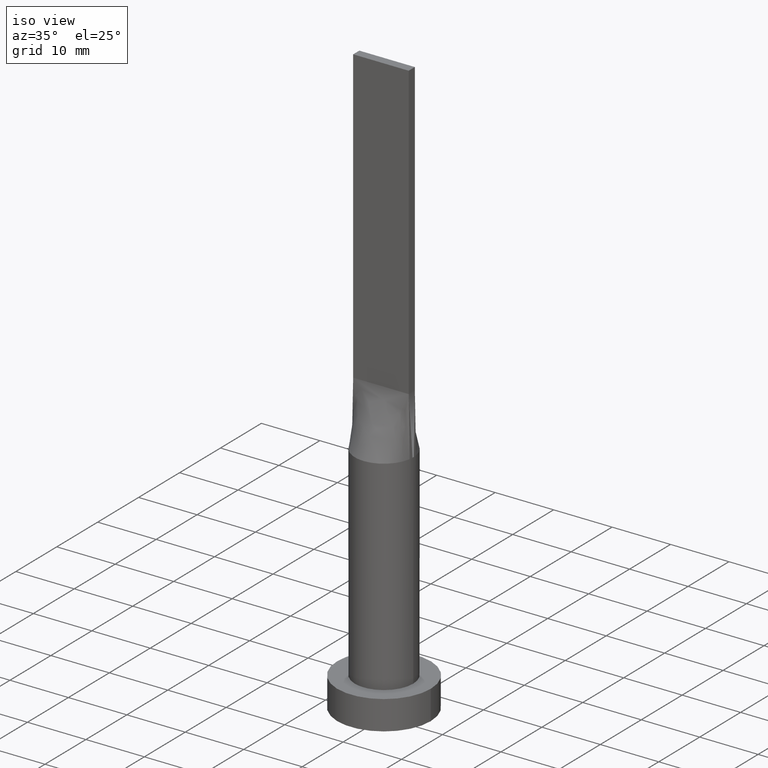
[diagram: clean part render]
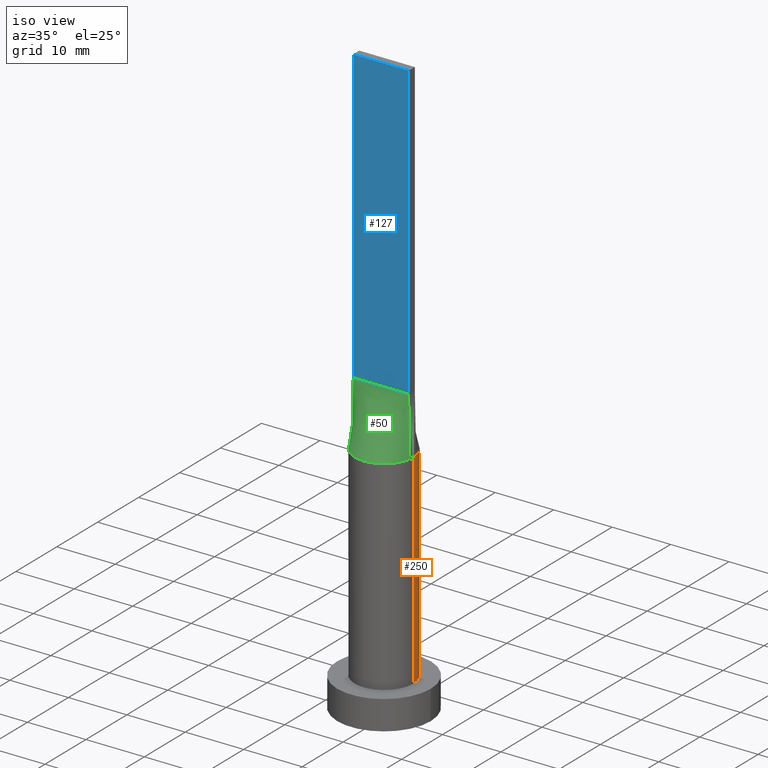
[diagram: same view with three faces highlighted in distinct colors, each labeled with its STEP entity id]
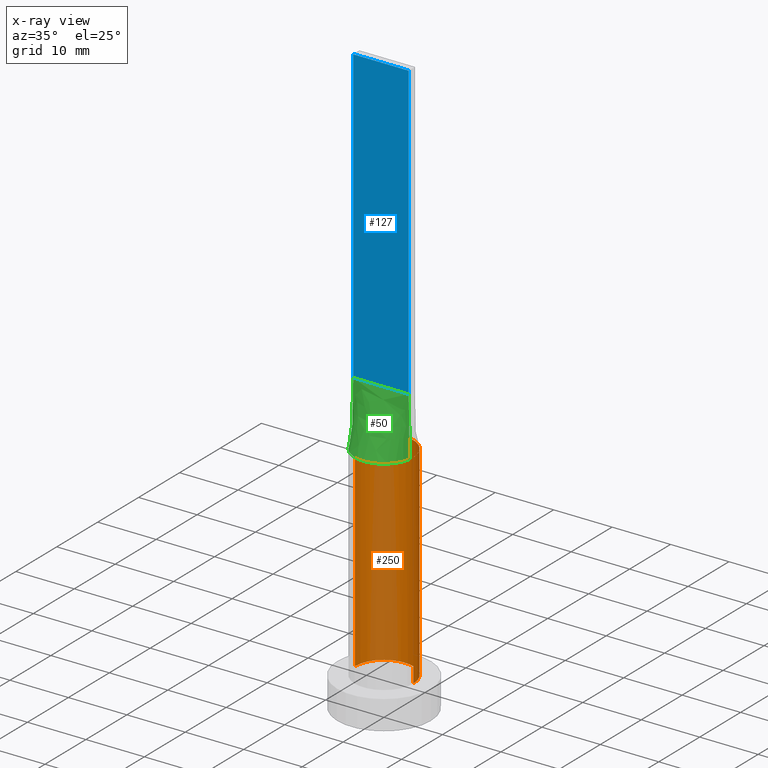
[diagram: x-ray of the same camera — body ghosted, the three highlighted faces saturated]
A machine part, iso view with three faces highlighted in distinct colors.
The next image is the same camera in x-ray (body ghosted, the three faces saturated) — at least one of them is partly hidden behind the body in this view.
Their STEP definitions:

[orange] entity #250 — the highlighted cylindrical surface (edge-blend (fillet) strip) has radius 5 mm, axis along (-0, -0, -1).
#1 = EDGE_CURVE ( 'NONE', #193, #394, #350, .T. ) ;
#6 = CARTESIAN_POINT ( 'NONE',  ( 1.732223102076450250, 4.702695359254404295, 39.99999999999997868 ) ) ;
#11 = VECTOR ( 'NONE', #167, 1000.000000000000000 ) ;
#20 = FACE_OUTER_BOUND ( 'NONE', #547, .T. ) ;
#30 = DIRECTION ( 'NONE',  ( 1.000000000000000000, 0.000000000000000000, 0.000000000000000000 ) ) ;
#39 = EDGE_CURVE ( 'NONE', #103, #183, #453, .T. ) ;
#45 = AXIS2_PLACEMENT_3D ( 'NONE', #233, #326, #231 ) ;
#47 = CARTESIAN_POINT ( 'NONE',  ( -4.874625637456156291, 1.186344398896586716, 40.00000000000000000 ) ) ;
#77 = CARTESIAN_POINT ( 'NONE',  ( -5.000000000000000000, 0.000000000000000000, 5.000000000000000000 ) ) ;
#90 = LINE ( 'NONE', #550, #428 ) ;
#102 = CARTESIAN_POINT ( 'NONE',  ( -0.7119876437238006339, 4.961551549233178982, 40.00000000000000711 ) ) ;
#103 = VERTEX_POINT ( 'NONE', #604 ) ;
#106 = CARTESIAN_POINT ( 'NONE',  ( -2.353781608410062010, 4.424438117685770777, 39.99999999999998579 ) ) ;
#110 = CARTESIAN_POINT ( 'NONE',  ( -0.3560391241594593192, 5.000000000000000000, 39.99999999999998579 ) ) ;
#123 = DIRECTION ( 'NONE',  ( 0.000000000000000000, 0.000000000000000000, 1.000000000000000000 ) ) ;
#148 = EDGE_CURVE ( 'NONE', #183, #491, #376, .T. ) ;
#150 = CARTESIAN_POINT ( 'NONE',  ( -4.029217956433124748, 3.021257902548482033, 40.00000000000001421 ) ) ;
#151 = VERTEX_POINT ( 'NONE', #335 ) ;
#164 = CIRCLE ( 'NONE', #45, 5.000000000000000000 ) ;
#167 = DIRECTION ( 'NONE',  ( -0.000000000000000000, -0.000000000000000000, -1.000000000000000000 ) ) ;
#178 = AXIS2_PLACEMENT_3D ( 'NONE', #312, #457, #30 ) ;
#183 = VERTEX_POINT ( 'NONE', #286 ) ;
#189 = CARTESIAN_POINT ( 'NONE',  ( 2.353781608410062454, 4.424438117685770777, 40.00000000000000000 ) ) ;
#193 = VERTEX_POINT ( 'NONE', #288 ) ;
#203 = ORIENTED_EDGE ( 'NONE', *, *, #433, .T. ) ;
#231 = DIRECTION ( 'NONE',  ( 1.000000000000000000, 0.000000000000000000, 0.000000000000000000 ) ) ;
#233 = CARTESIAN_POINT ( 'NONE',  ( 0.000000000000000000, 0.000000000000000000, 40.00000000000000000 ) ) ;
#236 = EDGE_CURVE ( 'NONE', #151, #394, #568, .T. ) ;
#240 = CARTESIAN_POINT ( 'NONE',  ( 4.753727492665065668, 1.629988260829201563, 40.00000000000001421 ) ) ;
#250 = ADVANCED_FACE ( 'NONE', ( #20 ), #496, .T. ) ;
#262 = AXIS2_PLACEMENT_3D ( 'NONE', #263, #581, #499 ) ;
#263 = CARTESIAN_POINT ( 'NONE',  ( 0.000000000000000000, 0.000000000000000000, 40.00000000000000000 ) ) ;
#284 = CARTESIAN_POINT ( 'NONE',  ( 3.404830936252119411, 3.673931880027066388, 40.00000000000000711 ) ) ;
#286 = CARTESIAN_POINT ( 'NONE',  ( 4.938814826645345768, 0.7798128673650538412, 40.00000000000000000 ) ) ;
#288 = CARTESIAN_POINT ( 'NONE',  ( -4.999812818728077701, -1.193032336741890821E-15, 40.00000000000000000 ) ) ;
#290 = CARTESIAN_POINT ( 'NONE',  ( 0.3560391241594590972, 5.000000000000001776, 40.00000000000000000 ) ) ;
#308 = ORIENTED_EDGE ( 'NONE', *, *, #1, .F. ) ;
#312 = CARTESIAN_POINT ( 'NONE',  ( 0.000000000000000000, 0.000000000000000000, 40.00000000000000000 ) ) ;
#326 = DIRECTION ( 'NONE',  ( 0.000000000000000000, 0.000000000000000000, 1.000000000000000000 ) ) ;
#329 = CARTESIAN_POINT ( 'NONE',  ( 4.874625637456157179, 1.186344398896585606, 40.00000000000000000 ) ) ;
#335 = CARTESIAN_POINT ( 'NONE',  ( 5.000000000000000000, 6.123233995736766282E-16, 5.000000000000000000 ) ) ;
#338 = CARTESIAN_POINT ( 'NONE',  ( -4.938831943662458812, 0.7798155886440081286, 40.00000000000000000 ) ) ;
#350 = LINE ( 'NONE', #500, #11 ) ;
#376 = B_SPLINE_CURVE_WITH_KNOTS ( 'NONE', 3,
 ( #575, #329, #240, #390, #616, #284, #621, #518, #189, #6, #383, #579, #290, #110, #102, #473, #386, #106, #577, #424, #380, #150, #528, #475, #47, #338 ),
 .UNSPECIFIED., .F., .F.,
 ( 4, 2, 2, 2, 2, 2, 2, 2, 2, 2, 2, 2, 4 ),
 ( 0.000000000000000000, 0.1250000000000001388, 0.2500000000000002220, 0.3125000000000002776, 0.3750000000000002776, 0.4375000000000002776, 0.5000000000000002220, 0.5625000000000002220, 0.6250000000000001110, 0.6875000000000001110, 0.7500000000000001110, 0.8750000000000001110, 1.000000000000000000 ),
 .UNSPECIFIED. ) ;
#380 = CARTESIAN_POINT ( 'NONE',  ( -3.404830936252120299, 3.673931880027067720, 40.00000000000000711 ) ) ;
#383 = CARTESIAN_POINT ( 'NONE',  ( 1.400150253878312823, 4.812847332616943419, 40.00000000000000711 ) ) ;
#386 = CARTESIAN_POINT ( 'NONE',  ( -1.732223102076449806, 4.702695359254402518, 39.99999999999999289 ) ) ;
#390 = CARTESIAN_POINT ( 'NONE',  ( 4.332026455536839293, 2.547220758687718689, 40.00000000000000711 ) ) ;
#394 = VERTEX_POINT ( 'NONE', #77 ) ;
#424 = CARTESIAN_POINT ( 'NONE',  ( -3.168723755431092748, 3.881165404529570484, 39.99999999999997868 ) ) ;
#428 = VECTOR ( 'NONE', #562, 1000.000000000000000 ) ;
#433 = EDGE_CURVE ( 'NONE', #103, #151, #90, .T. ) ;
#436 = DIRECTION ( 'NONE',  ( 1.000000000000000000, 0.000000000000000000, 0.000000000000000000 ) ) ;
#440 = CARTESIAN_POINT ( 'NONE',  ( 0.000000000000000000, 0.000000000000000000, 5.000000000000000000 ) ) ;
#453 = CIRCLE ( 'NONE', #178, 5.000000000000000000 ) ;
#457 = DIRECTION ( 'NONE',  ( 0.000000000000000000, 0.000000000000000000, 1.000000000000000000 ) ) ;
#462 = EDGE_CURVE ( 'NONE', #491, #193, #164, .T. ) ;
#473 = CARTESIAN_POINT ( 'NONE',  ( -1.400150253878312823, 4.812847332616943419, 40.00000000000000711 ) ) ;
#475 = CARTESIAN_POINT ( 'NONE',  ( -4.753727492665067444, 1.629988260829202007, 40.00000000000001421 ) ) ;
#491 = VERTEX_POINT ( 'NONE', #517 ) ;
#496 = CYLINDRICAL_SURFACE ( 'NONE', #262, 5.000000000000000000 ) ;
#499 = DIRECTION ( 'NONE',  ( -1.000000000000000000, 0.000000000000000000, 0.000000000000000000 ) ) ;
#500 = CARTESIAN_POINT ( 'NONE',  ( -5.000000000000000000, 0.000000000000000000, 40.00000000000000000 ) ) ;
#501 = ORIENTED_EDGE ( 'NONE', *, *, #462, .F. ) ;
#517 = CARTESIAN_POINT ( 'NONE',  ( -4.938831943662458812, 0.7798155886440081286, 40.00000000000000000 ) ) ;
#518 = CARTESIAN_POINT ( 'NONE',  ( 2.643217737595826566, 4.256483892511437439, 39.99999999999998579 ) ) ;
#528 = CARTESIAN_POINT ( 'NONE',  ( -4.332026455536841070, 2.547220758687717801, 40.00000000000000711 ) ) ;
#531 = ORIENTED_EDGE ( 'NONE', *, *, #148, .F. ) ;
#532 = ORIENTED_EDGE ( 'NONE', *, *, #236, .T. ) ;
#547 = EDGE_LOOP ( 'NONE', ( #613, #203, #532, #308, #501, #531 ) ) ;
#550 = CARTESIAN_POINT ( 'NONE',  ( 5.000000000000000000, 6.123233995736766282E-16, 40.00000000000000000 ) ) ;
#562 = DIRECTION ( 'NONE',  ( -0.000000000000000000, -0.000000000000000000, -1.000000000000000000 ) ) ;
#568 = CIRCLE ( 'NONE', #618, 5.000000000000000000 ) ;
#575 = CARTESIAN_POINT ( 'NONE',  ( 4.938814826645345768, 0.7798128673650538412, 40.00000000000000000 ) ) ;
#577 = CARTESIAN_POINT ( 'NONE',  ( -2.643217737595827455, 4.256483892511438327, 40.00000000000000000 ) ) ;
#579 = CARTESIAN_POINT ( 'NONE',  ( 0.7119876437238013001, 4.961551549233180758, 40.00000000000001421 ) ) ;
#581 = DIRECTION ( 'NONE',  ( -0.000000000000000000, -0.000000000000000000, -1.000000000000000000 ) ) ;
#604 = CARTESIAN_POINT ( 'NONE',  ( 4.999812818728077701, 1.241126956226958231E-15, 40.00000000000000000 ) ) ;
#613 = ORIENTED_EDGE ( 'NONE', *, *, #39, .F. ) ;
#616 = CARTESIAN_POINT ( 'NONE',  ( 4.029217956433126524, 3.021257902548482477, 40.00000000000000711 ) ) ;
#618 = AXIS2_PLACEMENT_3D ( 'NONE', #440, #123, #436 ) ;
#621 = CARTESIAN_POINT ( 'NONE',  ( 3.168723755431093192, 3.881165404529570040, 39.99999999999999289 ) ) ;

[blue] entity #127 — the highlighted planar face has unit normal (0, 1, -0).
#3 = ORIENTED_EDGE ( 'NONE', *, *, #515, .F. ) ;
#25 = EDGE_LOOP ( 'NONE', ( #389, #3, #296, #266 ) ) ;
#40 = CARTESIAN_POINT ( 'NONE',  ( -4.750000000000000000, -0.7499999999999991118, 50.00000000000000000 ) ) ;
#60 = PLANE ( 'NONE',  #470 ) ;
#85 = VECTOR ( 'NONE', #279, 1000.000000000000000 ) ;
#89 = VERTEX_POINT ( 'NONE', #469 ) ;
#98 = CARTESIAN_POINT ( 'NONE',  ( 4.750000000000000000, -0.7499999999999997780, 100.0000000000000000 ) ) ;
#105 = DIRECTION ( 'NONE',  ( -0.000000000000000000, -0.000000000000000000, -1.000000000000000000 ) ) ;
#126 = VERTEX_POINT ( 'NONE', #152 ) ;
#127 = ADVANCED_FACE ( 'NONE', ( #157 ), #60, .F. ) ;
#143 = VERTEX_POINT ( 'NONE', #98 ) ;
#152 = CARTESIAN_POINT ( 'NONE',  ( -4.750000000000000000, -0.7499999999999991118, 50.00000000000000000 ) ) ;
#157 = FACE_OUTER_BOUND ( 'NONE', #25, .T. ) ;
#169 = CARTESIAN_POINT ( 'NONE',  ( 4.750000000000000000, -0.7499999999999997780, 50.00000000000000000 ) ) ;
#213 = VERTEX_POINT ( 'NONE', #169 ) ;
#246 = DIRECTION ( 'NONE',  ( -1.000000000000000000, 6.847592668329501559E-17, 0.000000000000000000 ) ) ;
#248 = LINE ( 'NONE', #596, #516 ) ;
#251 = DIRECTION ( 'NONE',  ( 1.000000000000000000, -6.847592668329501559E-17, 0.000000000000000000 ) ) ;
#266 = ORIENTED_EDGE ( 'NONE', *, *, #572, .T. ) ;
#271 = EDGE_CURVE ( 'NONE', #89, #143, #248, .T. ) ;
#279 = DIRECTION ( 'NONE',  ( -0.000000000000000000, -0.000000000000000000, -1.000000000000000000 ) ) ;
#289 = VECTOR ( 'NONE', #105, 1000.000000000000000 ) ;
#296 = ORIENTED_EDGE ( 'NONE', *, *, #271, .F. ) ;
#351 = VECTOR ( 'NONE', #502, 1000.000000000000000 ) ;
#379 = LINE ( 'NONE', #521, #85 ) ;
#389 = ORIENTED_EDGE ( 'NONE', *, *, #455, .T. ) ;
#422 = CARTESIAN_POINT ( 'NONE',  ( -4.750000000000000000, -0.7499999999999991118, 100.0000000000000000 ) ) ;
#455 = EDGE_CURVE ( 'NONE', #126, #213, #465, .T. ) ;
#465 = LINE ( 'NONE', #40, #351 ) ;
#469 = CARTESIAN_POINT ( 'NONE',  ( -4.750000000000000000, -0.7499999999999991118, 100.0000000000000000 ) ) ;
#470 = AXIS2_PLACEMENT_3D ( 'NONE', #422, #617, #246 ) ;
#482 = CARTESIAN_POINT ( 'NONE',  ( 4.750000000000000000, -0.7499999999999997780, 100.0000000000000000 ) ) ;
#502 = DIRECTION ( 'NONE',  ( 1.000000000000000000, -6.847592668329501559E-17, 0.000000000000000000 ) ) ;
#515 = EDGE_CURVE ( 'NONE', #143, #213, #615, .T. ) ;
#516 = VECTOR ( 'NONE', #251, 1000.000000000000000 ) ;
#521 = CARTESIAN_POINT ( 'NONE',  ( -4.750000000000000000, -0.7499999999999991118, 100.0000000000000000 ) ) ;
#572 = EDGE_CURVE ( 'NONE', #89, #126, #379, .T. ) ;
#596 = CARTESIAN_POINT ( 'NONE',  ( -4.750000000000000000, -0.7499999999999991118, 100.0000000000000000 ) ) ;
#615 = LINE ( 'NONE', #482, #289 ) ;
#617 = DIRECTION ( 'NONE',  ( 6.847592668329501559E-17, 1.000000000000000000, -0.000000000000000000 ) ) ;

[green] entity #50 — the highlighted face is a freeform B-spline surface patch.
#8 = EDGE_CURVE ( 'NONE', #159, #101, #402, .T. ) ;
#36 = CARTESIAN_POINT ( 'NONE',  ( -0.3560391241594598188, -5.000000000000001776, 40.00000000000000000 ) ) ;
#38 = CARTESIAN_POINT ( 'NONE',  ( 4.354166666666667851, -0.7499999999999997780, 50.00000000000000000 ) ) ;
#40 = CARTESIAN_POINT ( 'NONE',  ( -4.750000000000000000, -0.7499999999999991118, 50.00000000000000000 ) ) ;
#44 = CARTESIAN_POINT ( 'NONE',  ( 4.938833698301754893, -0.7798158709413661738, 40.00000000000000000 ) ) ;
#50 = ADVANCED_FACE ( 'NONE', ( #306 ), #571, .T. ) ;
#64 = CARTESIAN_POINT ( 'NONE',  ( -2.643217737595827010, -4.256483892511436551, 39.99999999999999289 ) ) ;
#68 = CARTESIAN_POINT ( 'NONE',  ( -4.332026455536839293, -2.547220758687717801, 40.00000000000000711 ) ) ;
#72 = ORIENTED_EDGE ( 'NONE', *, *, #455, .F. ) ;
#81 = CARTESIAN_POINT ( 'NONE',  ( 3.958333333333336146, -0.7499999999999997780, 50.00000000000000000 ) ) ;
#83 = CARTESIAN_POINT ( 'NONE',  ( 4.938814826645345768, -0.7798128673650571718, 40.00000000000000000 ) ) ;
#87 = CARTESIAN_POINT ( 'NONE',  ( 4.753727492665065668, -1.629988260829203561, 40.00000000000000000 ) ) ;
#96 = ORIENTED_EDGE ( 'NONE', *, *, #119, .T. ) ;
#97 = DIRECTION ( 'NONE',  ( -0.01887803397728732291, 0.002980742206940386902, 0.9998173508241633423 ) ) ;
#101 = VERTEX_POINT ( 'NONE', #44 ) ;
#104 = VECTOR ( 'NONE', #567, 1000.000000000000114 ) ;
#113 = CARTESIAN_POINT ( 'NONE',  ( -4.029217956433126524, -3.021257902548482033, 40.00000000000000711 ) ) ;
#119 = EDGE_CURVE ( 'NONE', #126, #159, #341, .T. ) ;
#126 = VERTEX_POINT ( 'NONE', #152 ) ;
#130 = CARTESIAN_POINT ( 'NONE',  ( 0.7916666666666752894, -0.7499999999999995559, 50.00000000000000000 ) ) ;
#135 = ORIENTED_EDGE ( 'NONE', *, *, #8, .T. ) ;
#145 = CARTESIAN_POINT ( 'NONE',  ( 2.770833333333341031, -0.7499999999999997780, 50.00000000000000000 ) ) ;
#152 = CARTESIAN_POINT ( 'NONE',  ( -4.750000000000000000, -0.7499999999999991118, 50.00000000000000000 ) ) ;
#159 = VERTEX_POINT ( 'NONE', #478 ) ;
#160 = CARTESIAN_POINT ( 'NONE',  ( -4.753727492665065668, -1.629988260829201119, 40.00000000000000711 ) ) ;
#169 = CARTESIAN_POINT ( 'NONE',  ( 4.750000000000000000, -0.7499999999999997780, 50.00000000000000000 ) ) ;
#177 = CARTESIAN_POINT ( 'NONE',  ( 1.979166666666674734, -0.7499999999999997780, 50.00000000000000000 ) ) ;
#180 = CARTESIAN_POINT ( 'NONE',  ( 3.404830936252118967, -3.673931880027069496, 40.00000000000002842 ) ) ;
#182 = CARTESIAN_POINT ( 'NONE',  ( 2.353781608410061121, -4.424438117685769889, 39.99999999999999289 ) ) ;
#185 = CARTESIAN_POINT ( 'NONE',  ( 4.029217956433124748, -3.021257902548483365, 40.00000000000002132 ) ) ;
#213 = VERTEX_POINT ( 'NONE', #169 ) ;
#225 = CARTESIAN_POINT ( 'NONE',  ( -4.938814826645345768, -0.7798128673650532861, 40.00000000000000000 ) ) ;
#227 = CARTESIAN_POINT ( 'NONE',  ( -0.1979166666666593299, -0.7499999999999994449, 50.00000000000000000 ) ) ;
#230 = CARTESIAN_POINT ( 'NONE',  ( 0.3958333333333413639, -0.7499999999999994449, 50.00000000000000000 ) ) ;
#232 = CARTESIAN_POINT ( 'NONE',  ( 1.732223102076449583, -4.702695359254404295, 40.00000000000000711 ) ) ;
#238 = CARTESIAN_POINT ( 'NONE',  ( -1.400150253878313711, -4.812847332616943419, 40.00000000000000711 ) ) ;
#253 = CARTESIAN_POINT ( 'NONE',  ( -1.583333333333326376, -0.7499999999999995559, 50.00000000000001421 ) ) ;
#273 = CARTESIAN_POINT ( 'NONE',  ( -1.385416666666659413, -0.7499999999999995559, 50.00000000000001421 ) ) ;
#275 = CARTESIAN_POINT ( 'NONE',  ( 4.750000000000000000, -0.7499999999999997780, 50.00000000000000000 ) ) ;
#285 = LINE ( 'NONE', #427, #450 ) ;
#306 = FACE_OUTER_BOUND ( 'NONE', #495, .T. ) ;
#314 = CARTESIAN_POINT ( 'NONE',  ( -0.7119876437238014111, -4.961551549233179870, 39.99999999999999289 ) ) ;
#317 = CARTESIAN_POINT ( 'NONE',  ( -0.3958333333333254322, -0.7499999999999995559, 50.00000000000000000 ) ) ;
#341 = LINE ( 'NONE', #429, #104 ) ;
#346 = CARTESIAN_POINT ( 'NONE',  ( -3.958333333333332149, -0.7499999999999993339, 50.00000000000000711 ) ) ;
#351 = VECTOR ( 'NONE', #502, 1000.000000000000000 ) ;
#355 = CARTESIAN_POINT ( 'NONE',  ( 0.000000000000000000, 0.000000000000000000, 40.00000000000000000 ) ) ;
#359 = DIRECTION ( 'NONE',  ( 0.000000000000000000, 0.000000000000000000, 1.000000000000000000 ) ) ;
#361 = CARTESIAN_POINT ( 'NONE',  ( -2.353781608410061121, -4.424438117685769889, 39.99999999999998579 ) ) ;
#367 = CARTESIAN_POINT ( 'NONE',  ( 3.166666666666673180, -0.7499999999999997780, 50.00000000000000000 ) ) ;
#372 = CARTESIAN_POINT ( 'NONE',  ( 4.332026455536841070, -2.547220758687719577, 40.00000000000001421 ) ) ;
#398 = CARTESIAN_POINT ( 'NONE',  ( -3.166666666666662966, -0.7499999999999993339, 50.00000000000000711 ) ) ;
#402 = CIRCLE ( 'NONE', #559, 5.000000000000000000 ) ;
#403 = CARTESIAN_POINT ( 'NONE',  ( -3.168723755431094524, -3.881165404529569152, 39.99999999999999289 ) ) ;
#410 = CARTESIAN_POINT ( 'NONE',  ( -4.750000000000000000, -0.7499999999999991118, 50.00000000000000000 ) ) ;
#415 = CARTESIAN_POINT ( 'NONE',  ( 1.385416666666674956, -0.7499999999999997780, 50.00000000000000000 ) ) ;
#419 = CARTESIAN_POINT ( 'NONE',  ( 0.7119876437238003009, -4.961551549233181646, 40.00000000000000711 ) ) ;
#421 = CARTESIAN_POINT ( 'NONE',  ( 2.177083333333341475, -0.7499999999999997780, 50.00000000000000000 ) ) ;
#427 = CARTESIAN_POINT ( 'NONE',  ( 4.844407413322673328, -0.7649064336825285304, 45.00000000000000000 ) ) ;
#429 = CARTESIAN_POINT ( 'NONE',  ( -4.844407413322673328, -0.7649064336825261989, 45.00000000000000000 ) ) ;
#449 = CARTESIAN_POINT ( 'NONE',  ( -4.874625637456154514, -1.186344398896584718, 39.99999999999999289 ) ) ;
#450 = VECTOR ( 'NONE', #97, 1000.000000000000114 ) ;
#455 = EDGE_CURVE ( 'NONE', #126, #213, #465, .T. ) ;
#461 = CARTESIAN_POINT ( 'NONE',  ( -0.9895833333333253767, -0.7499999999999995559, 50.00000000000000711 ) ) ;
#464 = CARTESIAN_POINT ( 'NONE',  ( 0.9895833333333419191, -0.7499999999999996669, 50.00000000000000000 ) ) ;
#465 = LINE ( 'NONE', #40, #351 ) ;
#478 = CARTESIAN_POINT ( 'NONE',  ( -4.938821632323166178, -0.7798139456827060112, 40.00000000000000000 ) ) ;
#487 = CARTESIAN_POINT ( 'NONE',  ( -2.770833333333329040, -0.7499999999999994449, 50.00000000000001421 ) ) ;
#492 = CARTESIAN_POINT ( 'NONE',  ( -4.354166666666666075, -0.7499999999999992228, 50.00000000000000711 ) ) ;
#495 = EDGE_LOOP ( 'NONE', ( #135, #542, #72, #96 ) ) ;
#502 = DIRECTION ( 'NONE',  ( 1.000000000000000000, -6.847592668329501559E-17, 0.000000000000000000 ) ) ;
#503 = CARTESIAN_POINT ( 'NONE',  ( 1.583333333333341475, -0.7499999999999997780, 50.00000000000000000 ) ) ;
#509 = CARTESIAN_POINT ( 'NONE',  ( 1.400150253878312157, -4.812847332616943419, 39.99999999999999289 ) ) ;
#539 = CARTESIAN_POINT ( 'NONE',  ( -2.177083333333327708, -0.7499999999999995559, 50.00000000000001421 ) ) ;
#541 = EDGE_CURVE ( 'NONE', #101, #213, #285, .T. ) ;
#542 = ORIENTED_EDGE ( 'NONE', *, *, #541, .T. ) ;
#544 = DIRECTION ( 'NONE',  ( 1.000000000000000000, 0.000000000000000000, 0.000000000000000000 ) ) ;
#549 = CARTESIAN_POINT ( 'NONE',  ( -0.7916666666666584140, -0.7499999999999995559, 50.00000000000000000 ) ) ;
#552 = CARTESIAN_POINT ( 'NONE',  ( 3.168723755431094080, -3.881165404529570484, 40.00000000000000711 ) ) ;
#559 = AXIS2_PLACEMENT_3D ( 'NONE', #355, #359, #544 ) ;
#560 = CARTESIAN_POINT ( 'NONE',  ( 4.874625637456156291, -1.186344398896586938, 39.99999999999999289 ) ) ;
#563 = CARTESIAN_POINT ( 'NONE',  ( 0.1979166666666740126, -0.7499999999999994449, 50.00000000000000000 ) ) ;
#567 = DIRECTION ( 'NONE',  ( -0.01887803397728732291, -0.002980742206940062075, -0.9998173508241633423 ) ) ;
#571 = B_SPLINE_SURFACE_WITH_KNOTS ( 'NONE', 3, 1, ( 
 ( #225, #410 ),
 ( #449, #492 ),
 ( #160, #346 ),
 ( #68, #398 ),
 ( #113, #487 ),
 ( #589, #539 ),
 ( #403, #594 ),
 ( #64, #253 ),
 ( #361, #273 ),
 ( #607, #461 ),
 ( #238, #549 ),
 ( #314, #317 ),
 ( #36, #227 ),
 ( #609, #563 ),
 ( #419, #230 ),
 ( #509, #130 ),
 ( #232, #464 ),
 ( #182, #415 ),
 ( #599, #503 ),
 ( #552, #177 ),
 ( #180, #421 ),
 ( #185, #145 ),
 ( #372, #367 ),
 ( #87, #81 ),
 ( #560, #38 ),
 ( #83, #275 ) ),
 .UNSPECIFIED., .F., .F., .F.,
 ( 4, 2, 2, 2, 2, 2, 2, 2, 2, 2, 2, 2, 4 ),
 ( 2, 2 ),
 ( 0.000000000000000000, 0.1250000000000000278, 0.2500000000000001110, 0.3125000000000001665, 0.3750000000000002220, 0.4375000000000002220, 0.5000000000000002220, 0.5625000000000002220, 0.6250000000000002220, 0.6875000000000002220, 0.7500000000000003331, 0.8750000000000002220, 1.000000000000000000 ),
 ( 0.000000000000000000, 1.000000000000000000 ),
 .UNSPECIFIED. ) ;
#589 = CARTESIAN_POINT ( 'NONE',  ( -3.404830936252120299, -3.673931880027065056, 40.00000000000000000 ) ) ;
#594 = CARTESIAN_POINT ( 'NONE',  ( -1.979166666666660745, -0.7499999999999995559, 50.00000000000001421 ) ) ;
#599 = CARTESIAN_POINT ( 'NONE',  ( 2.643217737595827455, -4.256483892511438327, 40.00000000000000000 ) ) ;
#607 = CARTESIAN_POINT ( 'NONE',  ( -1.732223102076450250, -4.702695359254402518, 39.99999999999998579 ) ) ;
#609 = CARTESIAN_POINT ( 'NONE',  ( 0.3560391241594588196, -5.000000000000000888, 39.99999999999997868 ) ) ;